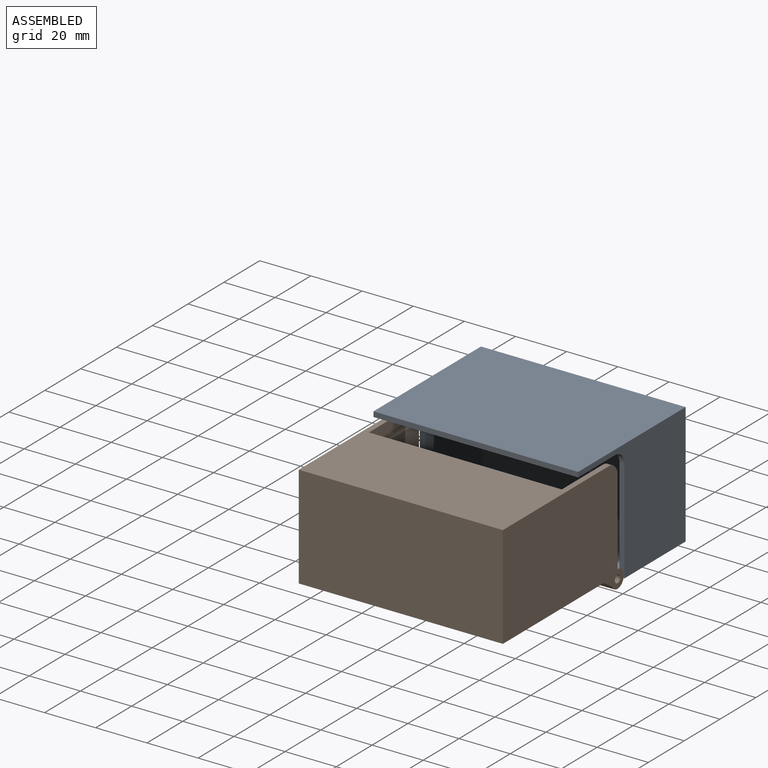
[diagram: assembled view]
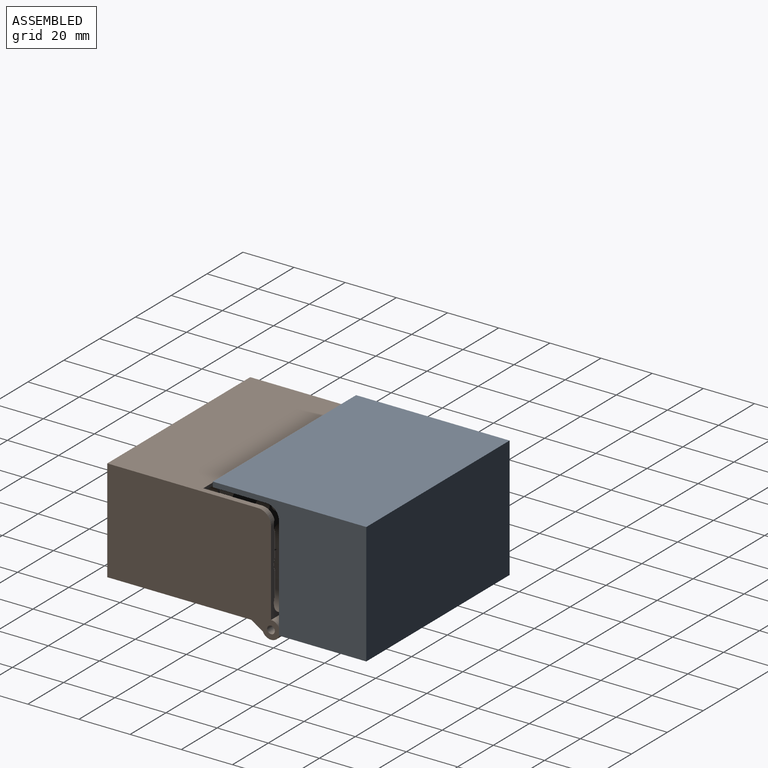
[diagram: assembled view, second angle]
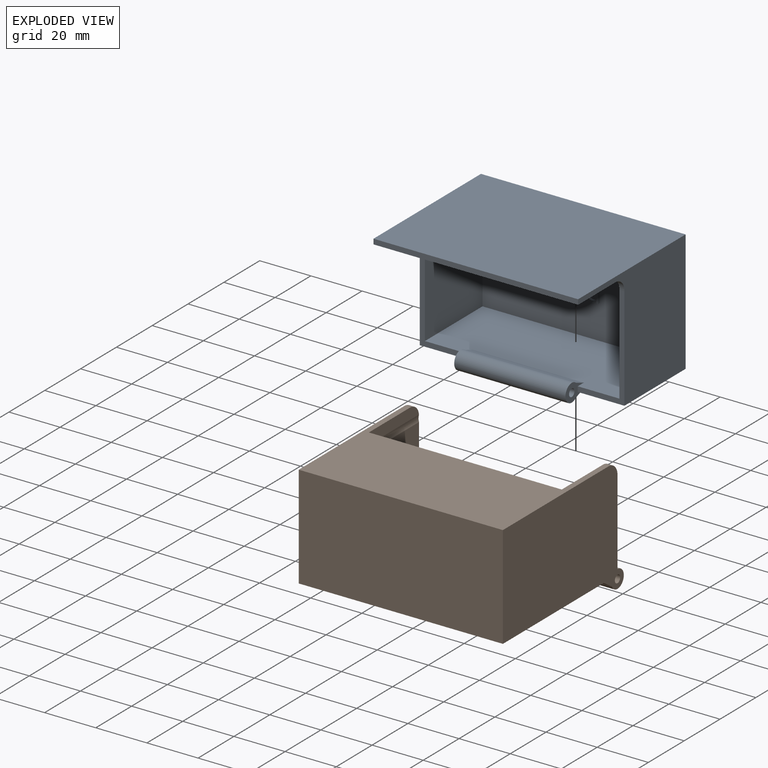
[diagram: exploded view]
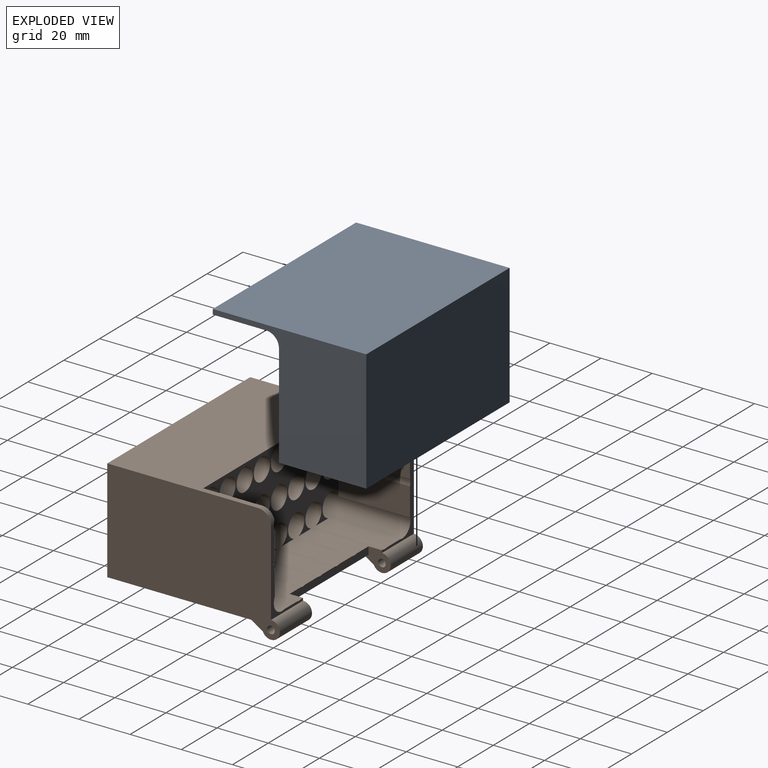
[diagram: exploded view, second angle]
ASSEMBLY  parts=2 mates=2
PART A: 207 faces, bbox 80x60x50 mm
  f0: plane 76x43.5mm, normal (0,-1,0), area 3111.6mm2, adj f6,f12,f13,f16,f21,f22,f23,f24
  f1: cylinder r=3.5mm len=43.5mm, axis (-1,0,0), area 696mm2, adj f2,f3,f19,f20
  f2: plane 10.19x7mm, normal (1,0,0), area 36.3mm2, adj f1,f4,f6,f7,f8,f19,f20
  f3: plane 10.19x7mm, normal (-1,0,0), area 36.3mm2, adj f1,f4,f5,f6,f8,f19,f20
  f4: cylinder r=1.5mm len=43.5mm, axis (-1,0,0), area 410mm2, adj f2,f3
  f5: plane 40.5x18.25mm, normal (0,-1,0), area 113.5mm2, adj f3,f6,f8,f11,f12,f18
  f6: plane 76x32.15mm, normal (0,0,1), area 2297.9mm2, adj f0,f2,f3,f5,f7,f12,f13,f20
  f7: plane 40.5x18.25mm, normal (0,-1,0), area 113.5mm2, adj f2,f6,f8,f10,f13,f17
  f8: plane 80x34.15mm, normal (0,0,-1), area 2586.4mm2, adj f2,f3,f5,f7,f9,f10,f11,f19
  f9: plane 80x47.5mm, normal (0,1,0), area 3800mm2, adj f8,f10,f11,f15
  f10: plane 60x47.5mm, normal (1,0,0), area 1679mm2, adj f7,f8,f9,f14,f15,f16,f17
  f11: plane 60x47.5mm, normal (-1,0,0), area 1679mm2, adj f5,f8,f9,f14,f15,f16,f18
  f12: plane 43.5x37.15mm, normal (1,0,0), area 1403.7mm2, adj f0,f5,f6,f16,f18
  f13: plane 43.5x37.15mm, normal (-1,0,0), area 1403.7mm2, adj f0,f6,f7,f16,f17
  f14: plane 80x2mm, normal (0,-1,0), area 160mm2, adj f10,f11,f15,f16
  f15: plane 80x60mm, normal (0,0,1), area 4800mm2, adj f9,f10,f11,f14
  f16: plane 80x58mm, normal (0,0,-1), area 4491.4mm2, adj f0,f10,f11,f12,f13,f14,f17,f18
  f17: cylinder r=5mm len=5mm, axis (1,0,0), area 15.7mm2, adj f7,f10,f13,f16
  f18: cylinder r=5mm len=5mm, axis (1,0,0), area 15.7mm2, adj f5,f11,f12,f16
  f19: plane 43.5x4.4mm, normal (0,0.35,-0.94), area 204.2mm2, adj f1,f2,f3,f8
  f20: plane 43.5x4.4mm, normal (0,0.35,0.94), area 204.2mm2, adj f1,f2,f3,f6
  f21: plane 7.41x1mm, normal (-1,0,0), area 7.4mm2, adj f0,f22,f24,f25
  f22: plane 1x0.86mm, normal (0,0,-1), area 0.9mm2, adj f0,f21,f23,f25
  f23: plane 7.41x1mm, normal (1,0,0), area 7.4mm2, adj f0,f22,f24,f25
  f24: plane 1x0.86mm, normal (0,0,1), area 0.9mm2, adj f0,f21,f23,f25
  f25: plane 7.41x0.86mm, normal (0,-1,0), area 6.4mm2, adj f21,f22,f23,f24
  f26: plane 7.41x1mm, normal (-1,0,0), area 7.4mm2, adj f0,f27,f31,f32
  f27: plane 4.13x1mm, normal (0,0,-1), area 4.1mm2, adj f0,f26,f28,f32
  f28: plane 1x0.78mm, normal (1,0,0), area 0.8mm2, adj f0,f27,f29,f32
  f29: plane 3.27x1mm, normal (0,0,1), area 3.3mm2, adj f0,f28,f30,f32
  f30: plane 6.63x1mm, normal (1,0,0), area 6.6mm2, adj f0,f29,f31,f32
  f31: plane 1x0.86mm, normal (0,0,1), area 0.9mm2, adj f0,f26,f30,f32
  f32: plane 7.41x4.13mm, normal (0,-1,0), area 8.9mm2, adj f26,f27,f28,f29,f30,f31
  f33: extruded ~1.62x1mm, area 1.7mm2, adj f34,f49,f50,f51
  f34: extruded ~1.62x1mm, area 1.7mm2, adj f33,f35,f50,f51
  f35: extruded ~1.25x1mm, area 1.4mm2, adj f34,f36,f50,f51
  f36: extruded ~1.27x1mm, area 1.4mm2, adj f35,f37,f50,f51
  f37: extruded ~1.61x1mm, area 1.7mm2, adj f36,f38,f50,f51
  f38: extruded ~1.63x1mm, area 1.7mm2, adj f37,f39,f50,f51
  f39: extruded ~1.26x1mm, area 1.4mm2, adj f38,f49,f50,f51
  f40: extruded ~2.12x1mm, area 2.3mm2, adj f0,f41,f48,f50
  f41: extruded ~2.1x1mm, area 2.3mm2, adj f0,f40,f42,f50
  f42: extruded ~1.85x1mm, area 2.1mm2, adj f0,f41,f43,f50
  f43: extruded ~1.89x1mm, area 2.1mm2, adj f0,f42,f44,f50
  f44: extruded ~2.12x1mm, area 2.3mm2, adj f0,f43,f45,f50
  f45: extruded ~1.53x1mm, area 1.6mm2, adj f0,f44,f46,f50
  f46: extruded ~1x1mm, area 1.4mm2, adj f0,f45,f47,f50
  f47: extruded ~1.32x1mm, area 1.4mm2, adj f0,f46,f48,f50
  f48: extruded ~1.89x1mm, area 2.1mm2, adj f0,f40,f47,f50
  f49: extruded ~1.25x1mm, area 1.4mm2, adj f33,f39,f50,f51
  f50: plane 5.76x5.1mm, normal (0,-1,0), area 11.8mm2, adj f33,f34,f35,f36,f37,f38,f39,f40
  f51: plane 4.34x3.36mm, normal (0,-1,0), area 12.1mm2, adj f33,f34,f35,f36,f37,f38,f39,f49
  f52: plane 5.55x2.11mm, normal (-0.93,0,-0.35), area 5.9mm2, adj f0,f53,f61,f62
  f53: plane 1x0.98mm, normal (0,0,-1), area 1mm2, adj f0,f52,f54,f62
  f54: plane 5.55x2.11mm, normal (0.93,0,-0.35), area 5.9mm2, adj f0,f53,f55,f62
  f55: plane 1x0.9mm, normal (0,0,1), area 0.9mm2, adj f0,f54,f56,f62
  f56: extruded ~3.68x1.33mm, area 3.9mm2, adj f0,f55,f57,f62
  f57: extruded ~1.11x1mm, area 1.2mm2, adj f0,f56,f58,f62
  f58: plane 1x0.04mm, normal (0,0,1), area 0mm2, adj f0,f57,f59,f62
  f59: extruded ~1.5x1mm, area 1.6mm2, adj f0,f58,f60,f62
  f60: plane 3.29x1.2mm, normal (0.94,0,0.34), area 3.5mm2, adj f0,f59,f61,f62
  f61: plane 1x0.9mm, normal (0,0,1), area 0.9mm2, adj f0,f52,f60,f62
  f62: plane 5.55x5.2mm, normal (0,-1,0), area 9.2mm2, adj f52,f53,f54,f55,f56,f57,f58,f59
  f63: extruded ~1.07x1mm, area 1.2mm2, adj f64,f81,f82,f83
  f64: extruded ~1.01x1mm, area 1.1mm2, adj f63,f65,f82,f83
  f65: extruded ~1.22x1mm, area 1.3mm2, adj f64,f66,f82,f83
  f66: plane 2.9x1mm, normal (0,0,1), area 2.9mm2, adj f65,f81,f82,f83
  f67: extruded ~1.94x1mm, area 2.1mm2, adj f0,f68,f80,f82
  f68: extruded ~1x0.96mm, area 1mm2, adj f0,f67,f69,f82
  f69: extruded ~1x0.84mm, area 0.9mm2, adj f0,f68,f70,f82
  f70: plane 1x0.75mm, normal (1,0,0), area 0.8mm2, adj f0,f69,f71,f82
  f71: extruded ~1.77x1mm, area 1.8mm2, adj f0,f70,f72,f82
  f72: extruded ~1.32x1mm, area 1.5mm2, adj f0,f71,f73,f82
  f73: extruded ~1.48x1mm, area 1.6mm2, adj f0,f72,f74,f82
  f74: plane 3.83x1mm, normal (0,0,-1), area 3.8mm2, adj f0,f73,f75,f82
  f75: plane 1x0.53mm, normal (1,0,0), area 0.5mm2, adj f0,f74,f76,f82
  f76: extruded ~1.81x1mm, area 2mm2, adj f0,f75,f77,f82
  f77: extruded ~1.65x1mm, area 1.8mm2, adj f0,f76,f78,f82
  f78: extruded ~1.78x1mm, area 2mm2, adj f0,f77,f79,f82
  f79: extruded ~2.14x1mm, area 2.3mm2, adj f0,f78,f80,f82
  f80: extruded ~2.08x1mm, area 2.3mm2, adj f0,f67,f79,f82
  f81: extruded ~1.21x1mm, area 1.3mm2, adj f63,f66,f82,f83
  f82: plane 5.76x4.7mm, normal (0,-1,0), area 12.3mm2, adj f63,f64,f65,f66,f67,f68,f69,f70
  f83: plane 2.9x1.64mm, normal (0,-1,0), area 3.8mm2, adj f63,f64,f65,f66,f81
  f84: plane 3.71x1.98mm, normal (-0.88,0,0.47), area 4.2mm2, adj f0,f85,f92,f93
  f85: plane 3.71x1.96mm, normal (0.88,0,0.47), area 4.2mm2, adj f0,f84,f86,f93
  f86: plane 1x0.94mm, normal (0,0,1), area 0.9mm2, adj f0,f85,f87,f93
  f87: plane 4.58x2.47mm, normal (-0.88,0,-0.47), area 5.2mm2, adj f0,f86,f88,f93
  f88: plane 2.83x1mm, normal (-1,0,0), area 2.8mm2, adj f0,f87,f89,f93
  f89: plane 1x0.87mm, normal (0,0,-1), area 0.9mm2, adj f0,f88,f90,f93
  f90: plane 2.87x1mm, normal (1,0,0), area 2.9mm2, adj f0,f89,f91,f93
  f91: plane 4.54x2.47mm, normal (0.88,0,-0.48), area 5.2mm2, adj f0,f90,f92,f93
  f92: plane 1x0.93mm, normal (0,0,1), area 0.9mm2, adj f0,f84,f91,f93
  f93: plane 7.41x5.81mm, normal (0,-1,0), area 10.4mm2, adj f84,f85,f86,f87,f88,f89,f90,f91
  f94: extruded ~1.62x1mm, area 1.7mm2, adj f95,f110,f111,f112
  f95: extruded ~1.62x1mm, area 1.7mm2, adj f94,f96,f111,f112
  f96: extruded ~1.25x1mm, area 1.4mm2, adj f95,f97,f111,f112
  f97: extruded ~1.27x1mm, area 1.4mm2, adj f96,f98,f111,f112
  f98: extruded ~1.61x1mm, area 1.7mm2, adj f97,f99,f111,f112
  f99: extruded ~1.63x1mm, area 1.7mm2, adj f98,f100,f111,f112
  f100: extruded ~1.26x1mm, area 1.4mm2, adj f99,f110,f111,f112
  f101: extruded ~2.12x1mm, area 2.3mm2, adj f0,f102,f109,f111
  f102: extruded ~2.1x1mm, area 2.3mm2, adj f0,f101,f103,f111
  f103: extruded ~1.85x1mm, area 2.1mm2, adj f0,f102,f104,f111
  f104: extruded ~1.89x1mm, area 2.1mm2, adj f0,f103,f105,f111
  f105: extruded ~2.12x1mm, area 2.3mm2, adj f0,f104,f106,f111
  f106: extruded ~1.53x1mm, area 1.6mm2, adj f0,f105,f107,f111
  f107: extruded ~1x1mm, area 1.4mm2, adj f0,f106,f108,f111
  f108: extruded ~1.32x1mm, area 1.4mm2, adj f0,f107,f109,f111
  f109: extruded ~1.89x1mm, area 2.1mm2, adj f0,f101,f108,f111
  f110: extruded ~1.25x1mm, area 1.4mm2, adj f94,f100,f111,f112
  f111: plane 5.76x5.1mm, normal (0,-1,0), area 11.8mm2, adj f94,f95,f96,f97,f98,f99,f100,f101
  f112: plane 4.34x3.36mm, normal (0,-1,0), area 12.1mm2, adj f94,f95,f96,f97,f98,f99,f100,f110
  f113: plane 3.6x1mm, normal (1,0,0), area 3.6mm2, adj f0,f114,f129,f130
  f114: plane 1x0.85mm, normal (0,0,1), area 0.9mm2, adj f0,f113,f115,f130
  f115: plane 3.63x1mm, normal (-1,0,0), area 3.6mm2, adj f0,f114,f116,f130
  f116: extruded ~1.54x1mm, area 1.7mm2, adj f0,f115,f117,f130
  f117: extruded ~1.52x1mm, area 1.6mm2, adj f0,f116,f118,f130
  f118: extruded ~1.05x1mm, area 1.1mm2, adj f0,f117,f119,f130
  f119: extruded ~1x0.72mm, area 1mm2, adj f0,f118,f120,f130
  f120: plane 1x0.05mm, normal (0,0,-1), area 0mm2, adj f0,f119,f121,f130
  f121: plane 1x0.74mm, normal (-0.99,0,-0.16), area 0.8mm2, adj f0,f120,f122,f130
  f122: plane 1x0.69mm, normal (0,0,-1), area 0.7mm2, adj f0,f121,f123,f130
  f123: plane 5.55x1mm, normal (1,0,0), area 5.6mm2, adj f0,f122,f124,f130
  f124: plane 1x0.84mm, normal (0,0,1), area 0.8mm2, adj f0,f123,f125,f130
  f125: plane 2.92x1mm, normal (-1,0,0), area 2.9mm2, adj f0,f124,f126,f130
  f126: extruded ~1.56x1mm, area 1.6mm2, adj f0,f125,f127,f130
  f127: extruded ~1.27x1mm, area 1.4mm2, adj f0,f126,f128,f130
  f128: extruded ~1x0.97mm, area 1.1mm2, adj f0,f127,f129,f130
  f129: extruded ~1.01x1mm, area 1.1mm2, adj f0,f113,f128,f130
  f130: plane 5.66x4.65mm, normal (0,-1,0), area 11.2mm2, adj f113,f114,f115,f116,f117,f118,f119,f120
  f131: plane 1x0.77mm, normal (-1,0,0), area 0.8mm2, adj f0,f132,f134,f135
  f132: plane 2.49x1mm, normal (0,0,-1), area 2.5mm2, adj f0,f131,f133,f135
  f133: plane 1x0.77mm, normal (1,0,0), area 0.8mm2, adj f0,f132,f134,f135
  f134: plane 2.49x1mm, normal (0,0,1), area 2.5mm2, adj f0,f131,f133,f135
  f135: plane 2.49x0.77mm, normal (0,-1,0), area 1.9mm2, adj f131,f132,f133,f134
  f136: extruded ~2.18x1mm, area 2.4mm2, adj f137,f149,f150,f151
  f137: extruded ~2.24x1mm, area 2.4mm2, adj f136,f138,f150,f151
  f138: extruded ~2.32x1mm, area 2.5mm2, adj f137,f139,f150,f151
  f139: plane 1.05x1mm, normal (0,0,1), area 1mm2, adj f138,f140,f150,f151
  f140: plane 5.92x1mm, normal (1,0,0), area 5.9mm2, adj f139,f141,f150,f151
  f141: plane 1.25x1mm, normal (0,0,-1), area 1.3mm2, adj f140,f149,f150,f151
  f142: extruded ~2.8x1mm, area 3.1mm2, adj f0,f143,f148,f150
  f143: extruded ~2.68x1mm, area 2.9mm2, adj f0,f142,f144,f150
  f144: extruded ~2.69x1mm, area 2.9mm2, adj f0,f143,f145,f150
  f145: plane 2.27x1mm, normal (0,0,1), area 2.3mm2, adj f0,f144,f146,f150
  f146: plane 7.41x1mm, normal (-1,0,0), area 7.4mm2, adj f0,f145,f147,f150
  f147: plane 2.05x1mm, normal (0,0,-1), area 2.1mm2, adj f0,f146,f148,f150
  f148: extruded ~2.87x1mm, area 3.1mm2, adj f0,f142,f147,f150
  f149: extruded ~2.16x1mm, area 2.3mm2, adj f136,f141,f150,f151
  f150: plane 7.41x5.91mm, normal (0,-1,0), area 17.4mm2, adj f136,f137,f138,f139,f140,f141,f142,f143
  f151: plane 5.92x4.14mm, normal (0,-1,0), area 21.5mm2, adj f136,f137,f138,f139,f140,f141,f149
  f152: extruded ~1.24x1mm, area 1.3mm2, adj f153,f178,f179,f180
  f153: extruded ~1x0.77mm, area 0.8mm2, adj f152,f154,f179,f180
  f154: extruded ~1x0.7mm, area 0.8mm2, adj f153,f155,f179,f180
  f155: extruded ~1x0.86mm, area 1mm2, adj f154,f156,f179,f180
  f156: extruded ~1.45x1mm, area 1.5mm2, adj f155,f157,f179,f180
  f157: plane 1x0.84mm, normal (0.04,0,-1), area 0.8mm2, adj f156,f158,f179,f180
  f158: plane 1x0.5mm, normal (-1,0,0), area 0.5mm2, adj f157,f178,f179,f180
  f159: plane 1x0.79mm, normal (-0.98,0,-0.21), area 0.8mm2, adj f0,f160,f177,f179
  f160: plane 1x0.62mm, normal (0,0,-1), area 0.6mm2, adj f0,f159,f161,f179
  f161: plane 3.79x1mm, normal (1,0,0), area 3.8mm2, adj f0,f160,f162,f179
  f162: extruded ~1.41x1mm, area 1.5mm2, adj f0,f161,f163,f179
  f163: extruded ~1.47x1mm, area 1.6mm2, adj f0,f162,f164,f179
  f164: extruded ~1x0.98mm, area 1mm2, adj f0,f163,f165,f179
  f165: extruded ~1x0.9mm, area 1mm2, adj f0,f164,f166,f179
  f166: plane 1x0.64mm, normal (-0.93,0,-0.37), area 0.7mm2, adj f0,f165,f167,f179
  f167: extruded ~1.57x1mm, area 1.6mm2, adj f0,f166,f168,f179
  f168: extruded ~1x0.9mm, area 1mm2, adj f0,f167,f169,f179
  f169: extruded ~1x0.97mm, area 1mm2, adj f0,f168,f170,f179
  f170: plane 1x0.35mm, normal (-1,0,0), area 0.3mm2, adj f0,f169,f171,f179
  f171: plane 1x0.94mm, normal (-0.03,0,1), area 0.9mm2, adj f0,f170,f172,f179
  f172: extruded ~2.69x1.76mm, area 3.6mm2, adj f0,f171,f173,f179
  f173: extruded ~1.21x1mm, area 1.3mm2, adj f0,f172,f174,f179
  f174: extruded ~1.29x1mm, area 1.4mm2, adj f0,f173,f175,f179
  f175: extruded ~1.03x1mm, area 1.1mm2, adj f0,f174,f176,f179
  f176: extruded ~1x0.83mm, area 1.1mm2, adj f0,f175,f177,f179
  f177: plane 1x0.04mm, normal (0,0,-1), area 0mm2, adj f0,f159,f176,f179
  f178: extruded ~1.21x1mm, area 1.3mm2, adj f152,f158,f179,f180
  f179: plane 5.75x4.45mm, normal (0,-1,0), area 12.1mm2, adj f152,f153,f154,f155,f156,f157,f158,f159
  f180: plane 2.73x2.14mm, normal (0,-1,0), area 4.7mm2, adj f152,f153,f154,f155,f156,f157,f158,f178
  f181: extruded ~1.25x1mm, area 1.4mm2, adj f182,f204,f205,f206
  f182: extruded ~1.15x1mm, area 1.3mm2, adj f181,f183,f205,f206
  f183: extruded ~1.61x1mm, area 1.7mm2, adj f182,f184,f205,f206
  f184: extruded ~1.62x1mm, area 1.7mm2, adj f183,f185,f205,f206
  f185: extruded ~1.13x1mm, area 1.3mm2, adj f184,f186,f205,f206
  f186: extruded ~1.25x1mm, area 1.4mm2, adj f185,f187,f205,f206
  f187: extruded ~1.69x1mm, area 1.8mm2, adj f186,f188,f205,f206
  f188: plane 1x0.18mm, normal (-1,0,0), area 0.2mm2, adj f187,f204,f205,f206
  f189: plane 1x0.05mm, normal (0,0,-1), area 0mm2, adj f0,f190,f203,f205
  f190: plane 1x0.74mm, normal (-0.99,0,-0.15), area 0.8mm2, adj f0,f189,f191,f205
  f191: plane 1x0.68mm, normal (0,0,-1), area 0.7mm2, adj f0,f190,f192,f205
  f192: plane 7.89x1mm, normal (1,0,0), area 7.9mm2, adj f0,f191,f193,f205
  f193: plane 1x0.84mm, normal (0,0,1), area 0.8mm2, adj f0,f192,f194,f205
  f194: plane 2.26x1mm, normal (-1,0,0), area 2.3mm2, adj f0,f193,f195,f205
  f195: plane 1x0.39mm, normal (-1,0,-0.05), area 0.4mm2, adj f0,f194,f196,f205
  f196: plane 1x0.4mm, normal (-1,0,-0.09), area 0.4mm2, adj f0,f195,f197,f205
  f197: plane 1x0.07mm, normal (0,0,1), area 0.1mm2, adj f0,f196,f198,f205
  f198: extruded ~1.73x1mm, area 2mm2, adj f0,f197,f199,f205
  f199: extruded ~1.69x1mm, area 1.9mm2, adj f0,f198,f200,f205
  f200: extruded ~2.13x1mm, area 2.3mm2, adj f0,f199,f201,f205
  f201: extruded ~2.12x1mm, area 2.2mm2, adj f0,f200,f202,f205
  f202: extruded ~1.7x1mm, area 1.9mm2, adj f0,f201,f203,f205
  f203: extruded ~1.74x1mm, area 2mm2, adj f0,f189,f202,f205
  f204: extruded ~1.51x1mm, area 1.6mm2, adj f181,f188,f205,f206
  f205: plane 7.99x4.89mm, normal (0,-1,0), area 15mm2, adj f181,f182,f183,f184,f185,f186,f187,f188
  f206: plane 4.35x3.17mm, normal (0,-1,0), area 11.6mm2, adj f181,f182,f183,f184,f185,f186,f187,f188
PART B: 80 faces, bbox 79.8x45.2x67.5 mm
  f0: plane 44x2.97mm, normal (0,0,1), area 129.6mm2, adj f8,f15,f16,f17,f18,f65,f66,f67
  f1: plane 17.9x4.56mm, normal (0,0.84,-0.54), area 97.1mm2, adj f6,f8,f11,f76
  f2: plane 17.9x4.56mm, normal (0,0.84,-0.54), area 97.1mm2, adj f3,f8,f9,f77
  f3: cylinder r=3.5mm len=17.9mm, axis (-1,0,0), area 268.6mm2, adj f2,f4,f9,f77
  f4: plane 33.2x17.9mm, normal (0,0,1), area 89.7mm2, adj f3,f9,f19,f20,f35,f36,f62,f63
  f5: cylinder r=1.5mm len=17.9mm, axis (-1,0,0), area 168.7mm2, adj f9,f77
  f6: cylinder r=3.5mm len=17.9mm, axis (-1,0,0), area 268.6mm2, adj f1,f11,f74,f76
  f7: plane 75.4x37.23mm, normal (0,0,1), area 1284mm2, adj f10,f13,f14,f15,f16,f17,f18,f19
  f8: plane 79.8x58.77mm, normal (0,1,0), area 4599.7mm2, adj f0,f1,f2,f9,f11,f12,f76,f77
  f9: plane 67.5x45.2mm, normal (-1,0,0), area 2600.4mm2, adj f2,f3,f4,f5,f8,f10,f12,f79
  f10: plane 79.8x59mm, normal (0,-1,0), area 2974mm2, adj f7,f9,f11,f12,f61,f73,f78,f79
  f11: plane 67.5x45.2mm, normal (1,0,0), area 2600.4mm2, adj f1,f6,f8,f10,f12,f74,f75,f78
  f12: plane 79.8x40.2mm, normal (0,0,-1), area 3208mm2, adj f8,f9,f10,f11
  f13: cylinder r=4.5mm len=63mm, axis (0,0,-1), area 1288mm2, adj f7,f60,f70,f71,f74
  f14: cylinder r=4.5mm len=63mm, axis (0,0,-1), area 1059mm2, adj f7,f37,f69,f70,f74
  f15: cylinder r=4.5mm len=57.77mm, axis (0,0,-1), area 1046mm2, adj f0,f7,f38,f68,f69
  f16: cylinder r=4.5mm len=57.77mm, axis (0,0,-1), area 1046mm2, adj f0,f7,f39,f67,f68
  f17: cylinder r=4.5mm len=57.77mm, axis (0,0,-1), area 1046mm2, adj f0,f7,f40,f66,f67
  f18: cylinder r=4.5mm len=57.77mm, axis (0,0,-1), area 1046mm2, adj f0,f7,f41,f65,f66
  f19: cylinder r=4.5mm len=63mm, axis (0,0,-1), area 1059mm2, adj f4,f7,f42,f64,f65
  f20: cylinder r=4.5mm len=63mm, axis (0,0,-1), area 1259.9mm2, adj f4,f7,f43,f63,f64
  f21: cylinder r=4.5mm len=63mm, axis (0,0,-1), area 1121.2mm2, adj f7,f44,f71,f72,f74
  f22: cylinder r=4.5mm len=63mm, axis (0,0,-1), area 1121.1mm2, adj f7,f45,f72,f73,f74,f78
  f23: cylinder r=4.5mm len=35mm, axis (0,0,-1), area 989.6mm2, adj f7,f46
  f24: cylinder r=4.5mm len=35mm, axis (0,0,-1), area 989.6mm2, adj f7,f47
  f25: cylinder r=4.5mm len=35mm, axis (0,0,-1), area 989.6mm2, adj f7,f48
  f26: cylinder r=4.5mm len=35mm, axis (0,0,-1), area 989.6mm2, adj f7,f49
  f27: cylinder r=4.5mm len=35mm, axis (0,0,-1), area 989.6mm2, adj f7,f50
  f28: cylinder r=4.5mm len=35mm, axis (0,0,-1), area 989.6mm2, adj f7,f51
  f29: cylinder r=4.5mm len=35mm, axis (0,0,-1), area 989.6mm2, adj f7,f52
  f30: cylinder r=4.5mm len=35mm, axis (0,0,-1), area 989.6mm2, adj f7,f53
  f31: cylinder r=4.5mm len=35mm, axis (0,0,-1), area 989.6mm2, adj f7,f54
  f32: cylinder r=4.5mm len=35mm, axis (0,0,-1), area 989.6mm2, adj f7,f55
  f33: cylinder r=4.5mm len=35mm, axis (0,0,-1), area 989.6mm2, adj f7,f56
  f34: cylinder r=4.5mm len=35mm, axis (0,0,-1), area 989.6mm2, adj f7,f57
  f35: cylinder r=4.5mm len=63mm, axis (0,0,-1), area 1065mm2, adj f4,f7,f58,f62,f63
  f36: cylinder r=4.5mm len=63mm, axis (0,0,-1), area 1065mm2, adj f4,f7,f59,f61,f62,f79
  f37: plane 9x9mm, normal (0,0,1), area 63.6mm2, adj f14
  f38: plane 9x9mm, normal (0,0,1), area 63.6mm2, adj f15
  f39: plane 9x9mm, normal (0,0,1), area 63.6mm2, adj f16
  f40: plane 9x9mm, normal (0,0,1), area 63.6mm2, adj f17
  f41: plane 9x9mm, normal (0,0,1), area 63.6mm2, adj f18
  f42: plane 9x9mm, normal (0,0,1), area 63.6mm2, adj f19
  f43: plane 9x9mm, normal (0,0,1), area 63.6mm2, adj f20
  f44: plane 9x9mm, normal (0,0,1), area 63.6mm2, adj f21
  f45: plane 9x9mm, normal (0,0,1), area 63.6mm2, adj f22
  f46: plane 9x9mm, normal (0,0,1), area 63.6mm2, adj f23
  f47: plane 9x9mm, normal (0,0,1), area 63.6mm2, adj f24
  f48: plane 9x9mm, normal (0,0,1), area 63.6mm2, adj f25
  f49: plane 9x9mm, normal (0,0,1), area 63.6mm2, adj f26
  f50: plane 9x9mm, normal (0,0,1), area 63.6mm2, adj f27
  f51: plane 9x9mm, normal (0,0,1), area 63.6mm2, adj f28
  f52: plane 9x9mm, normal (0,0,1), area 63.6mm2, adj f29
  f53: plane 9x9mm, normal (0,0,1), area 63.6mm2, adj f30
  f54: plane 9x9mm, normal (0,0,1), area 63.6mm2, adj f31
  f55: plane 9x9mm, normal (0,0,1), area 63.6mm2, adj f32
  f56: plane 9x9mm, normal (0,0,1), area 63.6mm2, adj f33
  f57: plane 9x9mm, normal (0,0,1), area 63.6mm2, adj f34
  f58: plane 9x9mm, normal (0,0,1), area 63.6mm2, adj f35
  f59: plane 9x9mm, normal (0,0,1), area 63.6mm2, adj f36
  f60: plane 9x9mm, normal (0,0,1), area 63.6mm2, adj f13
  f61: plane 27.96x4.37mm, normal (1,0,0), area 117.1mm2, adj f7,f10,f36,f79
  f62: plane 28x10.95mm, normal (1,0,0), area 306.5mm2, adj f4,f7,f35,f36
  f63: plane 28x10.95mm, normal (1,0,0), area 306.5mm2, adj f4,f7,f20,f35
  f64: plane 28x7.15mm, normal (0,-1,0), area 200.3mm2, adj f4,f7,f19,f20
  f65: plane 28x7.15mm, normal (0,-1,0), area 165.8mm2, adj f0,f4,f7,f18,f19,f77
  f66: plane 22.77x7.15mm, normal (0,-1,0), area 162.8mm2, adj f0,f7,f17,f18
  f67: plane 22.77x7.15mm, normal (0,-1,0), area 162.8mm2, adj f0,f7,f16,f17
  f68: plane 22.77x7.15mm, normal (0,-1,0), area 162.8mm2, adj f0,f7,f15,f16
  f69: plane 28x7.15mm, normal (0,-1,0), area 167.9mm2, adj f0,f7,f14,f15,f74,f76
  f70: plane 28x7.15mm, normal (0,-1,0), area 200.3mm2, adj f7,f13,f14,f74
  f71: plane 28x9.11mm, normal (-1,0,0), area 255.1mm2, adj f7,f13,f21,f74
  f72: plane 28x9.11mm, normal (-1,0,0), area 255.1mm2, adj f7,f21,f22,f74
  f73: plane 27.76x3.46mm, normal (-1,0,0), area 91.5mm2, adj f7,f10,f22,f78
  f74: plane 33.2x17.9mm, normal (0,0,1), area 84.8mm2, adj f6,f11,f13,f14,f21,f22,f69,f70
  f75: cylinder r=1.5mm len=17.9mm, axis (-1,0,0), area 168.7mm2, adj f11,f76
  f76: plane 11.25x7.97mm, normal (-1,0,0), area 48.5mm2, adj f0,f1,f6,f8,f69,f74,f75
  f77: plane 11.25x7.97mm, normal (1,0,0), area 48.5mm2, adj f0,f2,f3,f4,f5,f8,f65
  f78: cylinder r=5mm len=5mm, axis (-1,0,0), area 16.8mm2, adj f10,f11,f22,f73,f74
  f79: cylinder r=5mm len=5mm, axis (-1,0,0), area 17.2mm2, adj f4,f9,f10,f36,f61
PLACE A rot(axis=(1,0,0),0deg) t=(-102.34,-21.6,-8.58)mm
PLACE B rot(axis=(-1,0,0),90deg) t=(-75.87,-85.6,0.17)mm
MATE pin_slot B.f3 <-> A.f4  axis (-1,0,0) through (-58.84,-21.6,-8.58)mm
MATE cylindrical A.f4 <-> B.f3  axis (1,0,0) through (-58.84,-21.6,-8.58)mm
